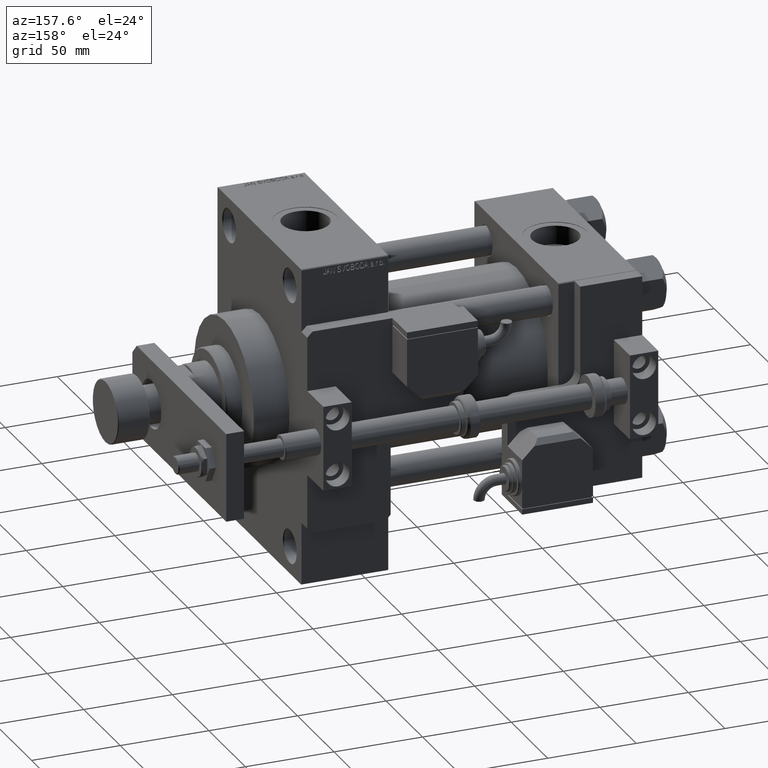
[diagram: clean part render]
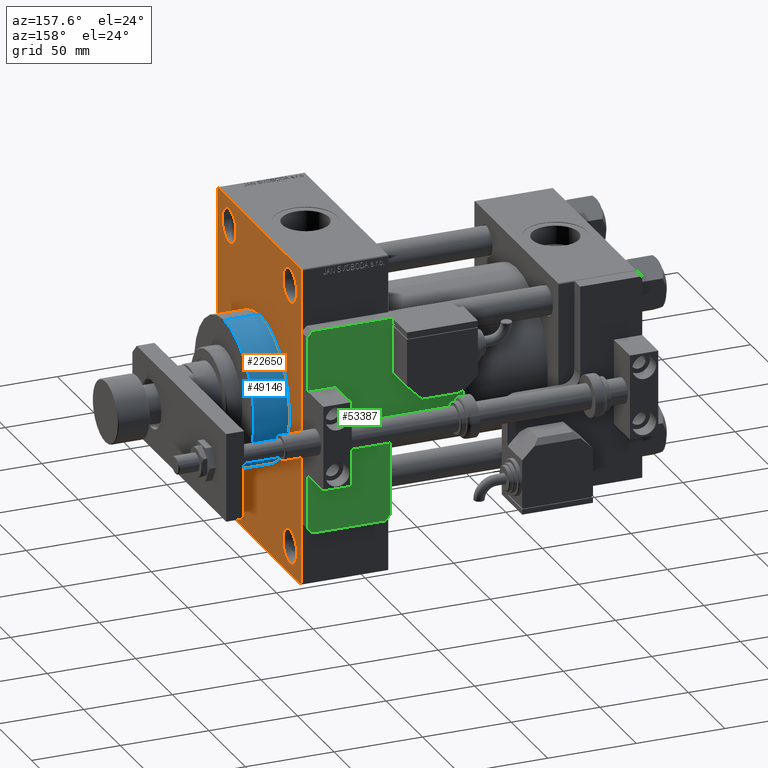
[diagram: same view with three faces highlighted in distinct colors, each labeled with its STEP entity id]
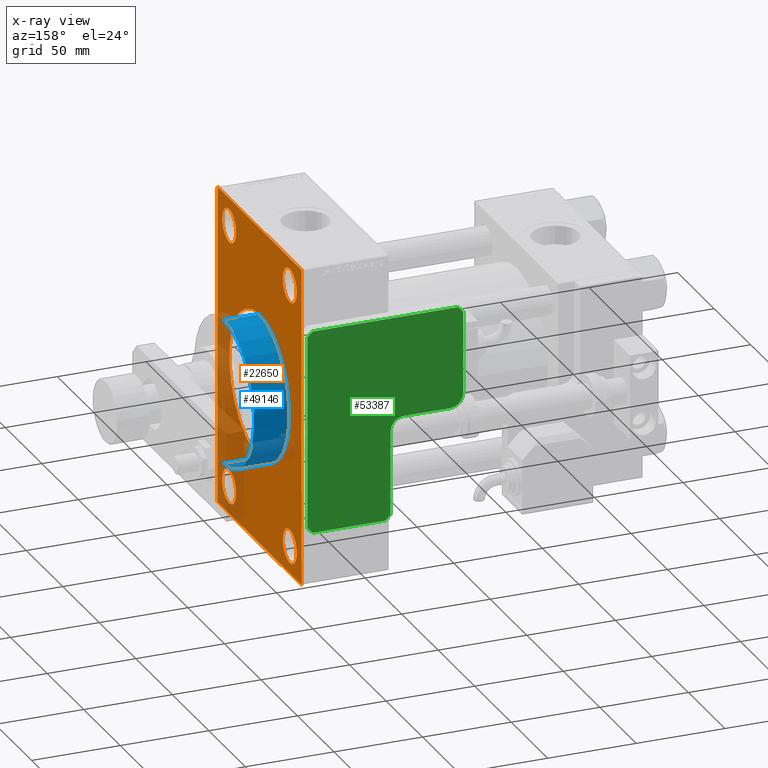
[diagram: x-ray of the same camera — body ghosted, the three highlighted faces saturated]
A machine part, auxiliary view with three faces highlighted in distinct colors.
The next image is the same camera in x-ray (body ghosted, the three faces saturated) — at least one of them is partly hidden behind the body in this view.
Their STEP definitions:

[orange] entity #22650 — the highlighted planar face has unit normal (-1, 0, 0).
#610 = AXIS2_PLACEMENT_3D ( 'NONE', #52709, #27626, #7219 ) ;
#696 = ORIENTED_EDGE ( 'NONE', *, *, #7988, .F. ) ;
#1314 = VERTEX_POINT ( 'NONE', #27329 ) ;
#1571 = CARTESIAN_POINT ( 'NONE',  ( 189.0000000000000000, -41.50000000000000711, -83.99999999999995737 ) ) ;
#2030 = DIRECTION ( 'NONE',  ( 1.000000000000000000, 0.000000000000000000, 0.000000000000000000 ) ) ;
#2076 = CARTESIAN_POINT ( 'NONE',  ( 189.0000000000000000, 57.50000000000000000, 89.50000000000000000 ) ) ;
#2613 = DIRECTION ( 'NONE',  ( -1.000000000000000000, -0.000000000000000000, -0.000000000000000000 ) ) ;
#2709 = EDGE_CURVE ( 'NONE', #44364, #12895, #35820, .T. ) ;
#2751 = ORIENTED_EDGE ( 'NONE', *, *, #34114, .F. ) ;
#3171 = DIRECTION ( 'NONE',  ( -1.000000000000000000, -0.000000000000000000, -0.000000000000000000 ) ) ;
#3440 = EDGE_CURVE ( 'NONE', #44793, #22265, #52528, .T. ) ;
#3693 = VECTOR ( 'NONE', #43287, 1000.000000000000000 ) ;
#3770 = VERTEX_POINT ( 'NONE', #2076 ) ;
#4422 = CARTESIAN_POINT ( 'NONE',  ( 189.0000000000000000, 41.49999999999999289, -65.00000000000000000 ) ) ;
#4516 = FACE_BOUND ( 'NONE', #14993, .T. ) ;
#4625 = DIRECTION ( 'NONE',  ( -1.000000000000000000, -0.000000000000000000, -0.000000000000000000 ) ) ;
#4780 = EDGE_CURVE ( 'NONE', #44793, #17189, #14409, .T. ) ;
#4907 = CIRCLE ( 'NONE', #28378, 9.500000000000063949 ) ;
#5215 = CIRCLE ( 'NONE', #35651, 9.499999999999980460 ) ;
#6899 = LINE ( 'NONE', #41175, #11250 ) ;
#7038 = AXIS2_PLACEMENT_3D ( 'NONE', #18582, #35203, #39821 ) ;
#7219 = DIRECTION ( 'NONE',  ( 0.000000000000000000, 0.000000000000000000, 1.000000000000000000 ) ) ;
#7949 = VERTEX_POINT ( 'NONE', #22564 ) ;
#7988 = EDGE_CURVE ( 'NONE', #27643, #12480, #26475, .T. ) ;
#8180 = LINE ( 'NONE', #23964, #8766 ) ;
#8497 = VERTEX_POINT ( 'NONE', #4422 ) ;
#8766 = VECTOR ( 'NONE', #53395, 1000.000000000000114 ) ;
#9039 = EDGE_CURVE ( 'NONE', #27535, #8497, #22160, .T. ) ;
#9190 = ORIENTED_EDGE ( 'NONE', *, *, #48992, .T. ) ;
#9247 = ORIENTED_EDGE ( 'NONE', *, *, #4780, .F. ) ;
#9944 = ORIENTED_EDGE ( 'NONE', *, *, #33539, .T. ) ;
#10106 = CARTESIAN_POINT ( 'NONE',  ( 189.0000000000000000, 57.00000000000002842, 90.00000000000000000 ) ) ;
#11118 = CARTESIAN_POINT ( 'NONE',  ( 189.0000000000000000, 57.50000000000000000, -89.49999999999997158 ) ) ;
#11133 = EDGE_CURVE ( 'NONE', #3770, #22265, #42328, .T. ) ;
#11250 = VECTOR ( 'NONE', #11255, 1000.000000000000000 ) ;
#11255 = DIRECTION ( 'NONE',  ( 0.000000000000000000, 0.7071067811865279218, -0.7071067811865671127 ) ) ;
#11775 = EDGE_LOOP ( 'NONE', ( #50761, #9190, #9247, #35277, #51174, #37765, #14862, #14901 ) ) ;
#12202 = CIRCLE ( 'NONE', #32217, 9.500000000000063949 ) ;
#12420 = CARTESIAN_POINT ( 'NONE',  ( 189.0000000000000000, -56.99999999999997158, 90.00000000000000000 ) ) ;
#12480 = VERTEX_POINT ( 'NONE', #46308 ) ;
#12531 = DIRECTION ( 'NONE',  ( 0.000000000000000000, 0.000000000000000000, 1.000000000000000000 ) ) ;
#12895 = VERTEX_POINT ( 'NONE', #42147 ) ;
#12948 = DIRECTION ( 'NONE',  ( -0.000000000000000000, 0.000000000000000000, 1.000000000000000000 ) ) ;
#13054 = DIRECTION ( 'NONE',  ( 0.000000000000000000, 0.000000000000000000, 1.000000000000000000 ) ) ;
#13361 = LINE ( 'NONE', #10106, #19414 ) ;
#13472 = CARTESIAN_POINT ( 'NONE',  ( 189.0000000000000000, 57.50000000000000000, 90.00000000000000000 ) ) ;
#13729 = DIRECTION ( 'NONE',  ( 0.000000000000000000, -1.000000000000000000, 0.000000000000000000 ) ) ;
#13864 = EDGE_LOOP ( 'NONE', ( #24833, #42689 ) ) ;
#14014 = VERTEX_POINT ( 'NONE', #27143 ) ;
#14323 = CARTESIAN_POINT ( 'NONE',  ( 189.0000000000000000, -41.50000000000000711, 74.50000000000001421 ) ) ;
#14409 = LINE ( 'NONE', #26667, #3693 ) ;
#14862 = ORIENTED_EDGE ( 'NONE', *, *, #25179, .T. ) ;
#14901 = ORIENTED_EDGE ( 'NONE', *, *, #27529, .T. ) ;
#14993 = EDGE_LOOP ( 'NONE', ( #41508, #16546 ) ) ;
#16429 = CARTESIAN_POINT ( 'NONE',  ( 189.0000000000000000, -41.50000000000000711, 84.00000000000007105 ) ) ;
#16546 = ORIENTED_EDGE ( 'NONE', *, *, #51098, .T. ) ;
#17189 = VERTEX_POINT ( 'NONE', #39500 ) ;
#17715 = DIRECTION ( 'NONE',  ( 0.000000000000000000, -0.7071067811865279218, 0.7071067811865671127 ) ) ;
#18582 = CARTESIAN_POINT ( 'NONE',  ( 189.0000000000000000, 41.49999999999999289, 74.50000000000001421 ) ) ;
#19414 = VECTOR ( 'NONE', #17715, 1000.000000000000000 ) ;
#20347 = AXIS2_PLACEMENT_3D ( 'NONE', #34568, #38659, #42737 ) ;
#20510 = EDGE_LOOP ( 'NONE', ( #2751, #696 ) ) ;
#21105 = FACE_BOUND ( 'NONE', #20510, .T. ) ;
#21757 = CARTESIAN_POINT ( 'NONE',  ( 189.0000000000000000, 5.021051876504148963E-15, -41.00000000000000000 ) ) ;
#21790 = CIRCLE ( 'NONE', #7038, 9.500000000000063949 ) ;
#22160 = CIRCLE ( 'NONE', #29972, 9.499999999999980460 ) ;
#22265 = VERTEX_POINT ( 'NONE', #46251 ) ;
#22564 = CARTESIAN_POINT ( 'NONE',  ( 189.0000000000000000, 57.00000000000002842, 90.00000000000000000 ) ) ;
#22650 = ADVANCED_FACE ( 'NONE', ( #25190, #42089, #4516, #50262, #21105, #28754 ), #33915, .F. ) ;
#23751 = AXIS2_PLACEMENT_3D ( 'NONE', #38099, #34013, #13054 ) ;
#23865 = AXIS2_PLACEMENT_3D ( 'NONE', #31473, #2613, #44811 ) ;
#23964 = CARTESIAN_POINT ( 'NONE',  ( 189.0000000000000000, -57.50000000000000000, 89.49999999999997158 ) ) ;
#24767 = CARTESIAN_POINT ( 'NONE',  ( 189.0000000000000000, 41.49999999999999289, -83.99999999999995737 ) ) ;
#24833 = ORIENTED_EDGE ( 'NONE', *, *, #42458, .T. ) ;
#25179 = EDGE_CURVE ( 'NONE', #7949, #32721, #43672, .T. ) ;
#25190 = FACE_BOUND ( 'NONE', #13864, .T. ) ;
#25298 = DIRECTION ( 'NONE',  ( 0.000000000000000000, 0.000000000000000000, 1.000000000000000000 ) ) ;
#25744 = DIRECTION ( 'NONE',  ( -1.000000000000000000, 0.000000000000000000, -0.000000000000000000 ) ) ;
#25851 = CARTESIAN_POINT ( 'NONE',  ( 189.0000000000000000, 41.49999999999999289, -74.49999999999998579 ) ) ;
#26475 = CIRCLE ( 'NONE', #20347, 41.00000000000000000 ) ;
#26667 = CARTESIAN_POINT ( 'NONE',  ( 189.0000000000000000, 57.50000000000000000, -90.00000000000000000 ) ) ;
#26844 = AXIS2_PLACEMENT_3D ( 'NONE', #37734, #25744, #12948 ) ;
#27143 = CARTESIAN_POINT ( 'NONE',  ( 189.0000000000000000, -41.50000000000000711, 64.99999999999994316 ) ) ;
#27329 = CARTESIAN_POINT ( 'NONE',  ( 189.0000000000000000, 41.49999999999999289, 64.99999999999994316 ) ) ;
#27523 = EDGE_LOOP ( 'NONE', ( #9944, #50048 ) ) ;
#27529 = EDGE_CURVE ( 'NONE', #32721, #44364, #8180, .T. ) ;
#27535 = VERTEX_POINT ( 'NONE', #24767 ) ;
#27626 = DIRECTION ( 'NONE',  ( -1.000000000000000000, -0.000000000000000000, -0.000000000000000000 ) ) ;
#27643 = VERTEX_POINT ( 'NONE', #21757 ) ;
#28376 = CARTESIAN_POINT ( 'NONE',  ( 189.0000000000000000, 56.99999999999997158, -90.00000000000000000 ) ) ;
#28378 = AXIS2_PLACEMENT_3D ( 'NONE', #14323, #42648, #47579 ) ;
#28754 = FACE_OUTER_BOUND ( 'NONE', #11775, .T. ) ;
#29972 = AXIS2_PLACEMENT_3D ( 'NONE', #37304, #33752, #25298 ) ;
#31473 = CARTESIAN_POINT ( 'NONE',  ( 189.0000000000000000, -41.50000000000000711, -74.49999999999998579 ) ) ;
#31935 = CIRCLE ( 'NONE', #610, 9.500000000000063949 ) ;
#32217 = AXIS2_PLACEMENT_3D ( 'NONE', #44563, #3171, #44840 ) ;
#32257 = EDGE_CURVE ( 'NONE', #3770, #7949, #13361, .T. ) ;
#32508 = CIRCLE ( 'NONE', #37711, 41.00000000000000000 ) ;
#32721 = VERTEX_POINT ( 'NONE', #12420 ) ;
#33539 = EDGE_CURVE ( 'NONE', #51382, #37181, #35089, .T. ) ;
#33752 = DIRECTION ( 'NONE',  ( -1.000000000000000000, -0.000000000000000000, -0.000000000000000000 ) ) ;
#33915 = PLANE ( 'NONE',  #26844 ) ;
#34013 = DIRECTION ( 'NONE',  ( -1.000000000000000000, -0.000000000000000000, -0.000000000000000000 ) ) ;
#34088 = VECTOR ( 'NONE', #47904, 1000.000000000000114 ) ;
#34114 = EDGE_CURVE ( 'NONE', #12480, #27643, #32508, .T. ) ;
#34568 = CARTESIAN_POINT ( 'NONE',  ( 189.0000000000000000, 0.000000000000000000, 0.000000000000000000 ) ) ;
#35089 = CIRCLE ( 'NONE', #23751, 9.499999999999980460 ) ;
#35203 = DIRECTION ( 'NONE',  ( -1.000000000000000000, -0.000000000000000000, -0.000000000000000000 ) ) ;
#35277 = ORIENTED_EDGE ( 'NONE', *, *, #3440, .T. ) ;
#35651 = AXIS2_PLACEMENT_3D ( 'NONE', #25851, #4625, #12531 ) ;
#35820 = LINE ( 'NONE', #52447, #37626 ) ;
#37181 = VERTEX_POINT ( 'NONE', #42705 ) ;
#37304 = CARTESIAN_POINT ( 'NONE',  ( 189.0000000000000000, 41.49999999999999289, -74.49999999999998579 ) ) ;
#37626 = VECTOR ( 'NONE', #43184, 1000.000000000000000 ) ;
#37704 = CARTESIAN_POINT ( 'NONE',  ( 189.0000000000000000, 57.50000000000000000, 90.00000000000000000 ) ) ;
#37711 = AXIS2_PLACEMENT_3D ( 'NONE', #51059, #2030, #52136 ) ;
#37734 = CARTESIAN_POINT ( 'NONE',  ( 189.0000000000000000, 0.000000000000000000, 0.000000000000000000 ) ) ;
#37765 = ORIENTED_EDGE ( 'NONE', *, *, #32257, .T. ) ;
#37818 = CARTESIAN_POINT ( 'NONE',  ( 189.0000000000000000, -57.50000000000000000, 89.49999999999997158 ) ) ;
#38099 = CARTESIAN_POINT ( 'NONE',  ( 189.0000000000000000, -41.50000000000000711, -74.49999999999998579 ) ) ;
#38659 = DIRECTION ( 'NONE',  ( 1.000000000000000000, 0.000000000000000000, 0.000000000000000000 ) ) ;
#38858 = EDGE_CURVE ( 'NONE', #37181, #51382, #44767, .T. ) ;
#39500 = CARTESIAN_POINT ( 'NONE',  ( 189.0000000000000000, -57.00000000000002842, -90.00000000000000000 ) ) ;
#39577 = ORIENTED_EDGE ( 'NONE', *, *, #53054, .T. ) ;
#39821 = DIRECTION ( 'NONE',  ( 0.000000000000000000, 0.000000000000000000, 1.000000000000000000 ) ) ;
#40381 = VERTEX_POINT ( 'NONE', #16429 ) ;
#41175 = CARTESIAN_POINT ( 'NONE',  ( 189.0000000000000000, -57.00000000000002842, -90.00000000000000000 ) ) ;
#41508 = ORIENTED_EDGE ( 'NONE', *, *, #9039, .T. ) ;
#42089 = FACE_BOUND ( 'NONE', #27523, .T. ) ;
#42147 = CARTESIAN_POINT ( 'NONE',  ( 189.0000000000000000, -57.50000000000000000, -89.49999999999994316 ) ) ;
#42328 = LINE ( 'NONE', #37704, #53538 ) ;
#42458 = EDGE_CURVE ( 'NONE', #14014, #40381, #4907, .T. ) ;
#42558 = VERTEX_POINT ( 'NONE', #51082 ) ;
#42602 = DIRECTION ( 'NONE',  ( 0.000000000000000000, 0.000000000000000000, -1.000000000000000000 ) ) ;
#42648 = DIRECTION ( 'NONE',  ( -1.000000000000000000, -0.000000000000000000, -0.000000000000000000 ) ) ;
#42689 = ORIENTED_EDGE ( 'NONE', *, *, #43593, .T. ) ;
#42705 = CARTESIAN_POINT ( 'NONE',  ( 189.0000000000000000, -41.50000000000000711, -65.00000000000000000 ) ) ;
#42737 = DIRECTION ( 'NONE',  ( 0.000000000000000000, 0.000000000000000000, -1.000000000000000000 ) ) ;
#43184 = DIRECTION ( 'NONE',  ( 0.000000000000000000, 0.000000000000000000, -1.000000000000000000 ) ) ;
#43287 = DIRECTION ( 'NONE',  ( 0.000000000000000000, -1.000000000000000000, 0.000000000000000000 ) ) ;
#43488 = EDGE_LOOP ( 'NONE', ( #49880, #39577 ) ) ;
#43593 = EDGE_CURVE ( 'NONE', #40381, #14014, #31935, .T. ) ;
#43672 = LINE ( 'NONE', #13472, #52128 ) ;
#44364 = VERTEX_POINT ( 'NONE', #37818 ) ;
#44563 = CARTESIAN_POINT ( 'NONE',  ( 189.0000000000000000, 41.49999999999999289, 74.50000000000001421 ) ) ;
#44767 = CIRCLE ( 'NONE', #23865, 9.499999999999980460 ) ;
#44793 = VERTEX_POINT ( 'NONE', #28376 ) ;
#44811 = DIRECTION ( 'NONE',  ( 0.000000000000000000, 0.000000000000000000, 1.000000000000000000 ) ) ;
#44840 = DIRECTION ( 'NONE',  ( 0.000000000000000000, 0.000000000000000000, 1.000000000000000000 ) ) ;
#46251 = CARTESIAN_POINT ( 'NONE',  ( 189.0000000000000000, 57.50000000000000000, -89.49999999999991473 ) ) ;
#46308 = CARTESIAN_POINT ( 'NONE',  ( 189.0000000000000000, 0.000000000000000000, 41.00000000000000000 ) ) ;
#47579 = DIRECTION ( 'NONE',  ( 0.000000000000000000, 0.000000000000000000, 1.000000000000000000 ) ) ;
#47904 = DIRECTION ( 'NONE',  ( -0.000000000000000000, 0.7071067811865474617, 0.7071067811865474617 ) ) ;
#48992 = EDGE_CURVE ( 'NONE', #12895, #17189, #6899, .T. ) ;
#49880 = ORIENTED_EDGE ( 'NONE', *, *, #52401, .T. ) ;
#50048 = ORIENTED_EDGE ( 'NONE', *, *, #38858, .T. ) ;
#50262 = FACE_BOUND ( 'NONE', #43488, .T. ) ;
#50761 = ORIENTED_EDGE ( 'NONE', *, *, #2709, .T. ) ;
#51059 = CARTESIAN_POINT ( 'NONE',  ( 189.0000000000000000, 0.000000000000000000, 0.000000000000000000 ) ) ;
#51082 = CARTESIAN_POINT ( 'NONE',  ( 189.0000000000000000, 41.49999999999999289, 84.00000000000007105 ) ) ;
#51098 = EDGE_CURVE ( 'NONE', #8497, #27535, #5215, .T. ) ;
#51174 = ORIENTED_EDGE ( 'NONE', *, *, #11133, .F. ) ;
#51382 = VERTEX_POINT ( 'NONE', #1571 ) ;
#52128 = VECTOR ( 'NONE', #13729, 1000.000000000000000 ) ;
#52136 = DIRECTION ( 'NONE',  ( 0.000000000000000000, 0.000000000000000000, -1.000000000000000000 ) ) ;
#52401 = EDGE_CURVE ( 'NONE', #1314, #42558, #12202, .T. ) ;
#52447 = CARTESIAN_POINT ( 'NONE',  ( 189.0000000000000000, -57.50000000000000000, 90.00000000000000000 ) ) ;
#52528 = LINE ( 'NONE', #11118, #34088 ) ;
#52709 = CARTESIAN_POINT ( 'NONE',  ( 189.0000000000000000, -41.50000000000000711, 74.50000000000001421 ) ) ;
#53054 = EDGE_CURVE ( 'NONE', #42558, #1314, #21790, .T. ) ;
#53395 = DIRECTION ( 'NONE',  ( -0.000000000000000000, -0.7071067811865474617, -0.7071067811865474617 ) ) ;
#53538 = VECTOR ( 'NONE', #42602, 1000.000000000000000 ) ;

[blue] entity #49146 — the highlighted cylindrical surface (partial cylindrical patch) has radius 41 mm, axis along (-1, -0, -0).
#6506 = CARTESIAN_POINT ( 'NONE',  ( 209.0000000000000000, 0.000000000000000000, 0.000000000000000000 ) ) ;
#6565 = CARTESIAN_POINT ( 'NONE',  ( 209.0000000000000000, 0.000000000000000000, 0.000000000000000000 ) ) ;
#7988 = EDGE_CURVE ( 'NONE', #27643, #12480, #26475, .T. ) ;
#9040 = CYLINDRICAL_SURFACE ( 'NONE', #25122, 41.00000000000000000 ) ;
#9942 = DIRECTION ( 'NONE',  ( -1.000000000000000000, -0.000000000000000000, -0.000000000000000000 ) ) ;
#11261 = EDGE_CURVE ( 'NONE', #36124, #12480, #31157, .T. ) ;
#12480 = VERTEX_POINT ( 'NONE', #46308 ) ;
#14811 = CARTESIAN_POINT ( 'NONE',  ( 209.0000000000000000, 0.000000000000000000, 41.00000000000000000 ) ) ;
#14915 = ORIENTED_EDGE ( 'NONE', *, *, #18801, .F. ) ;
#16030 = ORIENTED_EDGE ( 'NONE', *, *, #11261, .F. ) ;
#18801 = EDGE_CURVE ( 'NONE', #37668, #36124, #29317, .T. ) ;
#19140 = CARTESIAN_POINT ( 'NONE',  ( 209.0000000000000000, 5.021051876504148963E-15, -41.00000000000000000 ) ) ;
#20347 = AXIS2_PLACEMENT_3D ( 'NONE', #34568, #38659, #42737 ) ;
#21757 = CARTESIAN_POINT ( 'NONE',  ( 189.0000000000000000, 5.021051876504148963E-15, -41.00000000000000000 ) ) ;
#21814 = EDGE_CURVE ( 'NONE', #37668, #27643, #25875, .T. ) ;
#23019 = EDGE_LOOP ( 'NONE', ( #14915, #42388, #41178, #16030 ) ) ;
#25122 = AXIS2_PLACEMENT_3D ( 'NONE', #6506, #51983, #42789 ) ;
#25318 = DIRECTION ( 'NONE',  ( -1.000000000000000000, -0.000000000000000000, -0.000000000000000000 ) ) ;
#25875 = LINE ( 'NONE', #46319, #49563 ) ;
#26475 = CIRCLE ( 'NONE', #20347, 41.00000000000000000 ) ;
#27643 = VERTEX_POINT ( 'NONE', #21757 ) ;
#29317 = CIRCLE ( 'NONE', #34688, 41.00000000000000000 ) ;
#31157 = LINE ( 'NONE', #14811, #36165 ) ;
#34568 = CARTESIAN_POINT ( 'NONE',  ( 189.0000000000000000, 0.000000000000000000, 0.000000000000000000 ) ) ;
#34688 = AXIS2_PLACEMENT_3D ( 'NONE', #6565, #39773, #52312 ) ;
#36124 = VERTEX_POINT ( 'NONE', #49929 ) ;
#36165 = VECTOR ( 'NONE', #9942, 1000.000000000000000 ) ;
#37668 = VERTEX_POINT ( 'NONE', #19140 ) ;
#38659 = DIRECTION ( 'NONE',  ( 1.000000000000000000, 0.000000000000000000, 0.000000000000000000 ) ) ;
#39773 = DIRECTION ( 'NONE',  ( 1.000000000000000000, 0.000000000000000000, 0.000000000000000000 ) ) ;
#41178 = ORIENTED_EDGE ( 'NONE', *, *, #7988, .T. ) ;
#42388 = ORIENTED_EDGE ( 'NONE', *, *, #21814, .T. ) ;
#42737 = DIRECTION ( 'NONE',  ( 0.000000000000000000, 0.000000000000000000, -1.000000000000000000 ) ) ;
#42789 = DIRECTION ( 'NONE',  ( 0.000000000000000000, 0.000000000000000000, 1.000000000000000000 ) ) ;
#46308 = CARTESIAN_POINT ( 'NONE',  ( 189.0000000000000000, 0.000000000000000000, 41.00000000000000000 ) ) ;
#46319 = CARTESIAN_POINT ( 'NONE',  ( 209.0000000000000000, 5.021051876504148963E-15, -41.00000000000000000 ) ) ;
#46342 = FACE_OUTER_BOUND ( 'NONE', #23019, .T. ) ;
#49146 = ADVANCED_FACE ( 'NONE', ( #46342 ), #9040, .T. ) ;
#49563 = VECTOR ( 'NONE', #25318, 1000.000000000000000 ) ;
#49929 = CARTESIAN_POINT ( 'NONE',  ( 209.0000000000000000, 0.000000000000000000, 41.00000000000000000 ) ) ;
#51983 = DIRECTION ( 'NONE',  ( -1.000000000000000000, -0.000000000000000000, -0.000000000000000000 ) ) ;
#52312 = DIRECTION ( 'NONE',  ( 0.000000000000000000, 0.000000000000000000, -1.000000000000000000 ) ) ;

[green] entity #53387 — the highlighted planar face has unit normal (-0, 1, -0).
#478 = EDGE_CURVE ( 'NONE', #30873, #17605, #26657, .T. ) ;
#1363 = EDGE_CURVE ( 'NONE', #33917, #24160, #42236, .T. ) ;
#2524 = VECTOR ( 'NONE', #44678, 1000.000000000000114 ) ;
#2584 = CARTESIAN_POINT ( 'NONE',  ( 56.99999999999999289, 88.00000000000000000, 8.000000000000000000 ) ) ;
#2665 = CARTESIAN_POINT ( 'NONE',  ( 114.9999999999999858, 46.99999999999998579, 8.000000000000000000 ) ) ;
#2995 = PLANE ( 'NONE',  #34901 ) ;
#3478 = EDGE_CURVE ( 'NONE', #32181, #37215, #35353, .T. ) ;
#3553 = CARTESIAN_POINT ( 'NONE',  ( 64.50000000000000000, 54.49999999999998579, 8.000000000000000000 ) ) ;
#4501 = CARTESIAN_POINT ( 'NONE',  ( 49.49999999999999289, 88.00000000000000000, 8.000000000000000000 ) ) ;
#4510 = VECTOR ( 'NONE', #36158, 1000.000000000000000 ) ;
#4690 = ORIENTED_EDGE ( 'NONE', *, *, #478, .T. ) ;
#5733 = AXIS2_PLACEMENT_3D ( 'NONE', #3553, #13057, #44961 ) ;
#5877 = ORIENTED_EDGE ( 'NONE', *, *, #13720, .T. ) ;
#6205 = CARTESIAN_POINT ( 'NONE',  ( 0.000000000000000000, 3.000000000000002665, 8.000000000000000000 ) ) ;
#6437 = VERTEX_POINT ( 'NONE', #4501 ) ;
#7197 = CARTESIAN_POINT ( 'NONE',  ( 3.000000000000002665, 88.00000000000000000, 8.000000000000000000 ) ) ;
#7262 = DIRECTION ( 'NONE',  ( 0.000000000000000000, -0.000000000000000000, 1.000000000000000000 ) ) ;
#7309 = ORIENTED_EDGE ( 'NONE', *, *, #8294, .T. ) ;
#7695 = CARTESIAN_POINT ( 'NONE',  ( 114.9999999999999858, 2.999999999999975131, 8.000000000000000000 ) ) ;
#8294 = EDGE_CURVE ( 'NONE', #24160, #49755, #42393, .T. ) ;
#10850 = EDGE_CURVE ( 'NONE', #19504, #32181, #43124, .T. ) ;
#10899 = CARTESIAN_POINT ( 'NONE',  ( 114.9999999999999858, 0.000000000000000000, 8.000000000000000000 ) ) ;
#12819 = EDGE_CURVE ( 'NONE', #21137, #51899, #19310, .T. ) ;
#13057 = DIRECTION ( 'NONE',  ( -0.000000000000000000, 0.000000000000000000, -1.000000000000000000 ) ) ;
#13610 = VECTOR ( 'NONE', #23514, 1000.000000000000000 ) ;
#13720 = EDGE_CURVE ( 'NONE', #49755, #21137, #39751, .T. ) ;
#14104 = CARTESIAN_POINT ( 'NONE',  ( 56.99999999999999289, 80.49999999999997158, 8.000000000000000000 ) ) ;
#14617 = CARTESIAN_POINT ( 'NONE',  ( 49.49999999999999289, 80.49999999999998579, 8.000000000000000000 ) ) ;
#15236 = CARTESIAN_POINT ( 'NONE',  ( 79.50000000000051159, 79.49999999999977263, 8.000000000000000000 ) ) ;
#15268 = LINE ( 'NONE', #28045, #2524 ) ;
#16826 = EDGE_CURVE ( 'NONE', #6437, #31541, #25995, .T. ) ;
#17454 = CARTESIAN_POINT ( 'NONE',  ( 0.000000000000000000, 0.000000000000000000, 8.000000000000000000 ) ) ;
#17605 = VERTEX_POINT ( 'NONE', #6205 ) ;
#18031 = CARTESIAN_POINT ( 'NONE',  ( 112.0000000000000142, 46.99999999999998579, 8.000000000000000000 ) ) ;
#18345 = VECTOR ( 'NONE', #36793, 1000.000000000000114 ) ;
#19269 = CARTESIAN_POINT ( 'NONE',  ( 56.99999999999999289, 46.99999999999998579, 8.000000000000000000 ) ) ;
#19310 = LINE ( 'NONE', #15236, #48432 ) ;
#19504 = VERTEX_POINT ( 'NONE', #23287 ) ;
#20042 = LINE ( 'NONE', #2665, #23978 ) ;
#21104 = ORIENTED_EDGE ( 'NONE', *, *, #16826, .T. ) ;
#21137 = VERTEX_POINT ( 'NONE', #21225 ) ;
#21225 = CARTESIAN_POINT ( 'NONE',  ( 114.9999999999999858, 43.99999999999998579, 8.000000000000000000 ) ) ;
#22084 = ORIENTED_EDGE ( 'NONE', *, *, #1363, .T. ) ;
#23287 = CARTESIAN_POINT ( 'NONE',  ( 64.50000000000000000, 46.99999999999998579, 8.000000000000000000 ) ) ;
#23514 = DIRECTION ( 'NONE',  ( -1.000000000000000000, 0.000000000000000000, 0.000000000000000000 ) ) ;
#23978 = VECTOR ( 'NONE', #28233, 1000.000000000000000 ) ;
#24001 = ORIENTED_EDGE ( 'NONE', *, *, #3478, .T. ) ;
#24081 = EDGE_CURVE ( 'NONE', #17605, #33917, #15268, .T. ) ;
#24160 = VERTEX_POINT ( 'NONE', #24208 ) ;
#24208 = CARTESIAN_POINT ( 'NONE',  ( 111.9999999999999858, 0.000000000000000000, 8.000000000000000000 ) ) ;
#25607 = ORIENTED_EDGE ( 'NONE', *, *, #24081, .T. ) ;
#25634 = ORIENTED_EDGE ( 'NONE', *, *, #53118, .T. ) ;
#25995 = LINE ( 'NONE', #2584, #13610 ) ;
#26657 = LINE ( 'NONE', #43277, #28849 ) ;
#27033 = EDGE_CURVE ( 'NONE', #37215, #6437, #52210, .T. ) ;
#27141 = DIRECTION ( 'NONE',  ( 1.000000000000000000, 0.000000000000000000, 0.000000000000000000 ) ) ;
#28045 = CARTESIAN_POINT ( 'NONE',  ( 1.500000000000001332, 1.499999999999987566, 8.000000000000000000 ) ) ;
#28184 = VECTOR ( 'NONE', #30410, 1000.000000000000114 ) ;
#28233 = DIRECTION ( 'NONE',  ( -1.000000000000000000, 0.000000000000000000, 0.000000000000000000 ) ) ;
#28782 = ORIENTED_EDGE ( 'NONE', *, *, #41406, .T. ) ;
#28849 = VECTOR ( 'NONE', #47654, 1000.000000000000000 ) ;
#30410 = DIRECTION ( 'NONE',  ( 0.7071067811865507924, 0.7071067811865441310, -0.000000000000000000 ) ) ;
#30873 = VERTEX_POINT ( 'NONE', #32170 ) ;
#31541 = VERTEX_POINT ( 'NONE', #7197 ) ;
#31855 = DIRECTION ( 'NONE',  ( -0.7071067811865441310, 0.7071067811865507924, -0.000000000000000000 ) ) ;
#32170 = CARTESIAN_POINT ( 'NONE',  ( 0.000000000000000000, 85.00000000000001421, 8.000000000000000000 ) ) ;
#32181 = VERTEX_POINT ( 'NONE', #50674 ) ;
#32387 = VECTOR ( 'NONE', #34607, 1000.000000000000000 ) ;
#33185 = ORIENTED_EDGE ( 'NONE', *, *, #10850, .T. ) ;
#33917 = VERTEX_POINT ( 'NONE', #44826 ) ;
#34599 = EDGE_LOOP ( 'NONE', ( #21104, #25634, #4690, #25607, #22084, #7309, #5877, #47980, #28782, #33185, #24001, #52975 ) ) ;
#34607 = DIRECTION ( 'NONE',  ( 1.000000000000000000, 0.000000000000000000, 0.000000000000000000 ) ) ;
#34901 = AXIS2_PLACEMENT_3D ( 'NONE', #35672, #43305, #52575 ) ;
#35353 = LINE ( 'NONE', #19269, #4510 ) ;
#35672 = CARTESIAN_POINT ( 'NONE',  ( 0.000000000000000000, 0.000000000000000000, 8.000000000000000000 ) ) ;
#36158 = DIRECTION ( 'NONE',  ( 0.000000000000000000, 1.000000000000000000, 0.000000000000000000 ) ) ;
#36793 = DIRECTION ( 'NONE',  ( -0.7071067811865507924, -0.7071067811865441310, -0.000000000000000000 ) ) ;
#37215 = VERTEX_POINT ( 'NONE', #14104 ) ;
#37937 = VECTOR ( 'NONE', #52012, 1000.000000000000000 ) ;
#39751 = LINE ( 'NONE', #10899, #37937 ) ;
#40289 = FACE_OUTER_BOUND ( 'NONE', #34599, .T. ) ;
#40912 = AXIS2_PLACEMENT_3D ( 'NONE', #14617, #7262, #27141 ) ;
#41406 = EDGE_CURVE ( 'NONE', #51899, #19504, #20042, .T. ) ;
#42236 = LINE ( 'NONE', #17454, #32387 ) ;
#42393 = LINE ( 'NONE', #42942, #28184 ) ;
#42942 = CARTESIAN_POINT ( 'NONE',  ( 55.99999999999947420, -55.99999999999999289, 8.000000000000000000 ) ) ;
#43124 = CIRCLE ( 'NONE', #5733, 7.500000000000007105 ) ;
#43277 = CARTESIAN_POINT ( 'NONE',  ( 0.000000000000000000, 88.00000000000000000, 8.000000000000000000 ) ) ;
#43305 = DIRECTION ( 'NONE',  ( 0.000000000000000000, -0.000000000000000000, 1.000000000000000000 ) ) ;
#44678 = DIRECTION ( 'NONE',  ( 0.7071067811865441310, -0.7071067811865507924, -0.000000000000000000 ) ) ;
#44826 = CARTESIAN_POINT ( 'NONE',  ( 2.999999999999975131, 0.000000000000000000, 8.000000000000000000 ) ) ;
#44961 = DIRECTION ( 'NONE',  ( 1.000000000000000000, 0.000000000000000000, 0.000000000000000000 ) ) ;
#47654 = DIRECTION ( 'NONE',  ( 0.000000000000000000, -1.000000000000000000, 0.000000000000000000 ) ) ;
#47980 = ORIENTED_EDGE ( 'NONE', *, *, #12819, .T. ) ;
#48432 = VECTOR ( 'NONE', #31855, 1000.000000000000114 ) ;
#49755 = VERTEX_POINT ( 'NONE', #7695 ) ;
#49868 = LINE ( 'NONE', #53685, #18345 ) ;
#50674 = CARTESIAN_POINT ( 'NONE',  ( 56.99999999999999289, 54.49999999999998579, 8.000000000000000000 ) ) ;
#51899 = VERTEX_POINT ( 'NONE', #18031 ) ;
#52012 = DIRECTION ( 'NONE',  ( 0.000000000000000000, 1.000000000000000000, 0.000000000000000000 ) ) ;
#52210 = CIRCLE ( 'NONE', #40912, 7.500000000000000000 ) ;
#52575 = DIRECTION ( 'NONE',  ( 1.000000000000000000, 0.000000000000000000, -0.000000000000000000 ) ) ;
#52975 = ORIENTED_EDGE ( 'NONE', *, *, #27033, .T. ) ;
#53118 = EDGE_CURVE ( 'NONE', #31541, #30873, #49868, .T. ) ;
#53387 = ADVANCED_FACE ( 'NONE', ( #40289 ), #2995, .T. ) ;
#53685 = CARTESIAN_POINT ( 'NONE',  ( -42.50000000000000711, 42.50000000000040501, 8.000000000000000000 ) ) ;